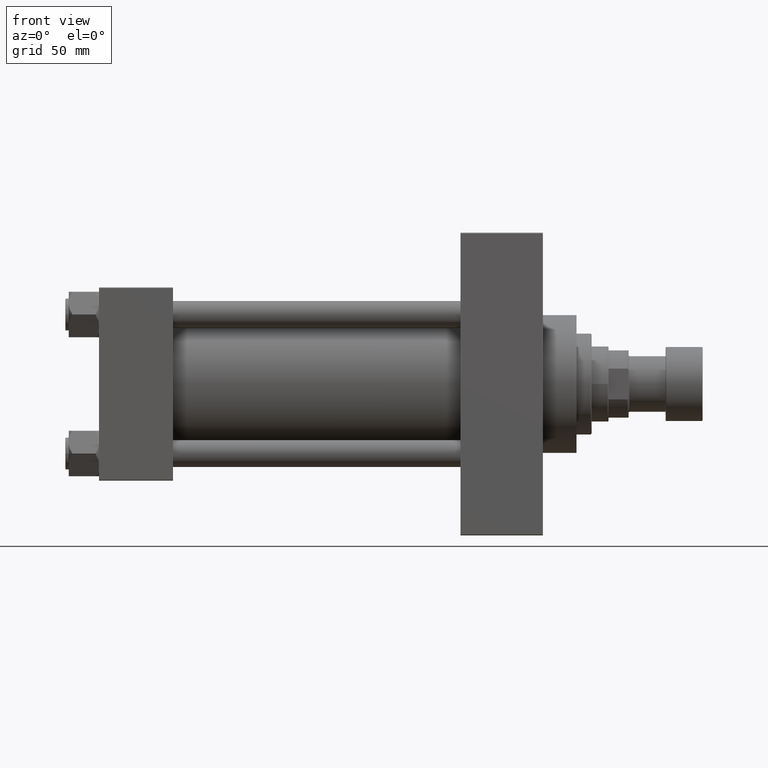
[diagram: clean part render]
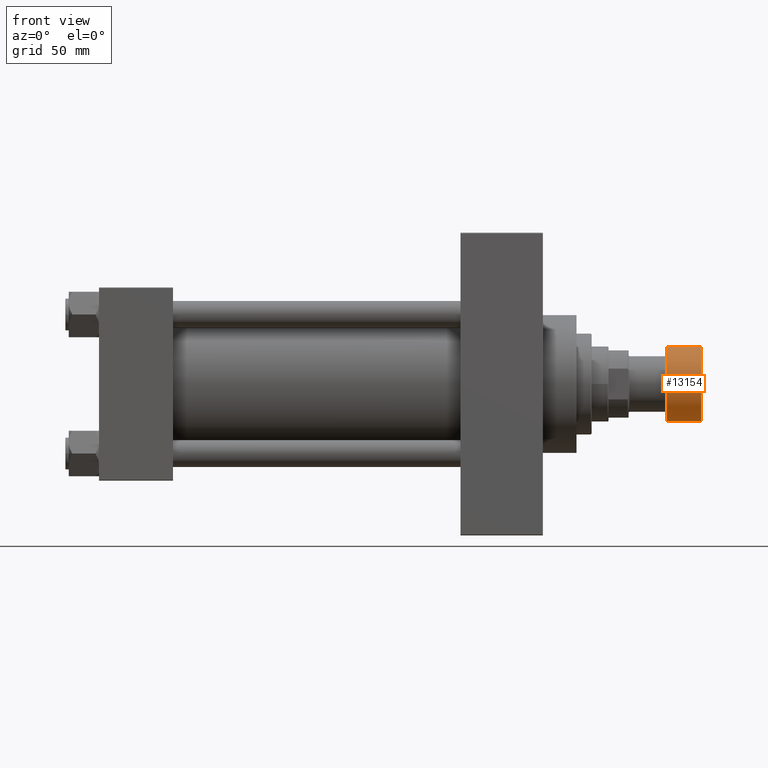
[diagram: same view with one face highlighted and labeled with its STEP entity id]
A machine part, front view. The second image highlights one B-rep face of the part: STEP entity #13154.
In plain terms, the highlighted cylindrical surface (partial cylindrical patch) has radius 22 mm, axis along (1, 0, 0).
Its self-contained STEP definition (entity closure, byte-faithful):
#744 = DIRECTION ( 'NONE',  ( 0.000000000000000000, 0.000000000000000000, 1.000000000000000000 ) ) ;
#1455 = CARTESIAN_POINT ( 'NONE',  ( 22.00000000000000000, 0.000000000000000000, -0.5000000000000004441 ) ) ;
#1715 = DIRECTION ( 'NONE',  ( 0.000000000000000000, 0.000000000000000000, 1.000000000000000000 ) ) ;
#3190 = CIRCLE ( 'NONE', #37485, 22.00000000000000000 ) ;
#3200 = DIRECTION ( 'NONE',  ( -0.000000000000000000, -0.000000000000000000, -1.000000000000000000 ) ) ;
#5736 = LINE ( 'NONE', #24562, #40124 ) ;
#7831 = EDGE_CURVE ( 'NONE', #22503, #14078, #3190, .T. ) ;
#8832 = CARTESIAN_POINT ( 'NONE',  ( -22.00000000000000000, 2.694222958124176809E-15, -21.50000000000000000 ) ) ;
#10153 = DIRECTION ( 'NONE',  ( 1.000000000000000000, 0.000000000000000000, 0.000000000000000000 ) ) ;
#10563 = AXIS2_PLACEMENT_3D ( 'NONE', #43015, #3200, #43492 ) ;
#12706 = FACE_OUTER_BOUND ( 'NONE', #35006, .T. ) ;
#13154 = ADVANCED_FACE ( 'NONE', ( #12706 ), #46655, .T. ) ;
#14078 = VERTEX_POINT ( 'NONE', #46363 ) ;
#16035 = ORIENTED_EDGE ( 'NONE', *, *, #7831, .T. ) ;
#17074 = ORIENTED_EDGE ( 'NONE', *, *, #28096, .T. ) ;
#17913 = VERTEX_POINT ( 'NONE', #1455 ) ;
#18162 = CARTESIAN_POINT ( 'NONE',  ( -22.00000000000000000, 2.694222958124176809E-15, -0.5000000000000004441 ) ) ;
#19280 = LINE ( 'NONE', #34215, #37991 ) ;
#19781 = CARTESIAN_POINT ( 'NONE',  ( 0.000000000000000000, 0.000000000000000000, -22.00000000000000000 ) ) ;
#20018 = DIRECTION ( 'NONE',  ( 1.000000000000000000, 0.000000000000000000, 0.000000000000000000 ) ) ;
#20138 = DIRECTION ( 'NONE',  ( 0.000000000000000000, 0.000000000000000000, 1.000000000000000000 ) ) ;
#20179 = EDGE_CURVE ( 'NONE', #22503, #34698, #5736, .T. ) ;
#22503 = VERTEX_POINT ( 'NONE', #8832 ) ;
#24562 = CARTESIAN_POINT ( 'NONE',  ( -22.00000000000000000, 2.694222958124176809E-15, -22.00000000000000000 ) ) ;
#28096 = EDGE_CURVE ( 'NONE', #17913, #34698, #32432, .T. ) ;
#32406 = EDGE_CURVE ( 'NONE', #14078, #17913, #19280, .T. ) ;
#32432 = CIRCLE ( 'NONE', #10563, 22.00000000000000000 ) ;
#34215 = CARTESIAN_POINT ( 'NONE',  ( 22.00000000000000000, 0.000000000000000000, -22.00000000000000000 ) ) ;
#34698 = VERTEX_POINT ( 'NONE', #18162 ) ;
#35006 = EDGE_LOOP ( 'NONE', ( #43717, #16035, #42237, #17074 ) ) ;
#37485 = AXIS2_PLACEMENT_3D ( 'NONE', #47284, #46566, #10153 ) ;
#37991 = VECTOR ( 'NONE', #744, 1000.000000000000000 ) ;
#39987 = AXIS2_PLACEMENT_3D ( 'NONE', #19781, #1715, #20018 ) ;
#40124 = VECTOR ( 'NONE', #20138, 1000.000000000000000 ) ;
#42237 = ORIENTED_EDGE ( 'NONE', *, *, #32406, .T. ) ;
#43015 = CARTESIAN_POINT ( 'NONE',  ( 0.000000000000000000, 0.000000000000000000, -0.5000000000000004441 ) ) ;
#43492 = DIRECTION ( 'NONE',  ( 1.000000000000000000, 0.000000000000000000, 0.000000000000000000 ) ) ;
#43717 = ORIENTED_EDGE ( 'NONE', *, *, #20179, .F. ) ;
#46363 = CARTESIAN_POINT ( 'NONE',  ( 22.00000000000000000, 0.000000000000000000, -21.50000000000000000 ) ) ;
#46566 = DIRECTION ( 'NONE',  ( 0.000000000000000000, 0.000000000000000000, 1.000000000000000000 ) ) ;
#46655 = CYLINDRICAL_SURFACE ( 'NONE', #39987, 22.00000000000000000 ) ;
#47284 = CARTESIAN_POINT ( 'NONE',  ( 0.000000000000000000, 0.000000000000000000, -21.50000000000000000 ) ) ;